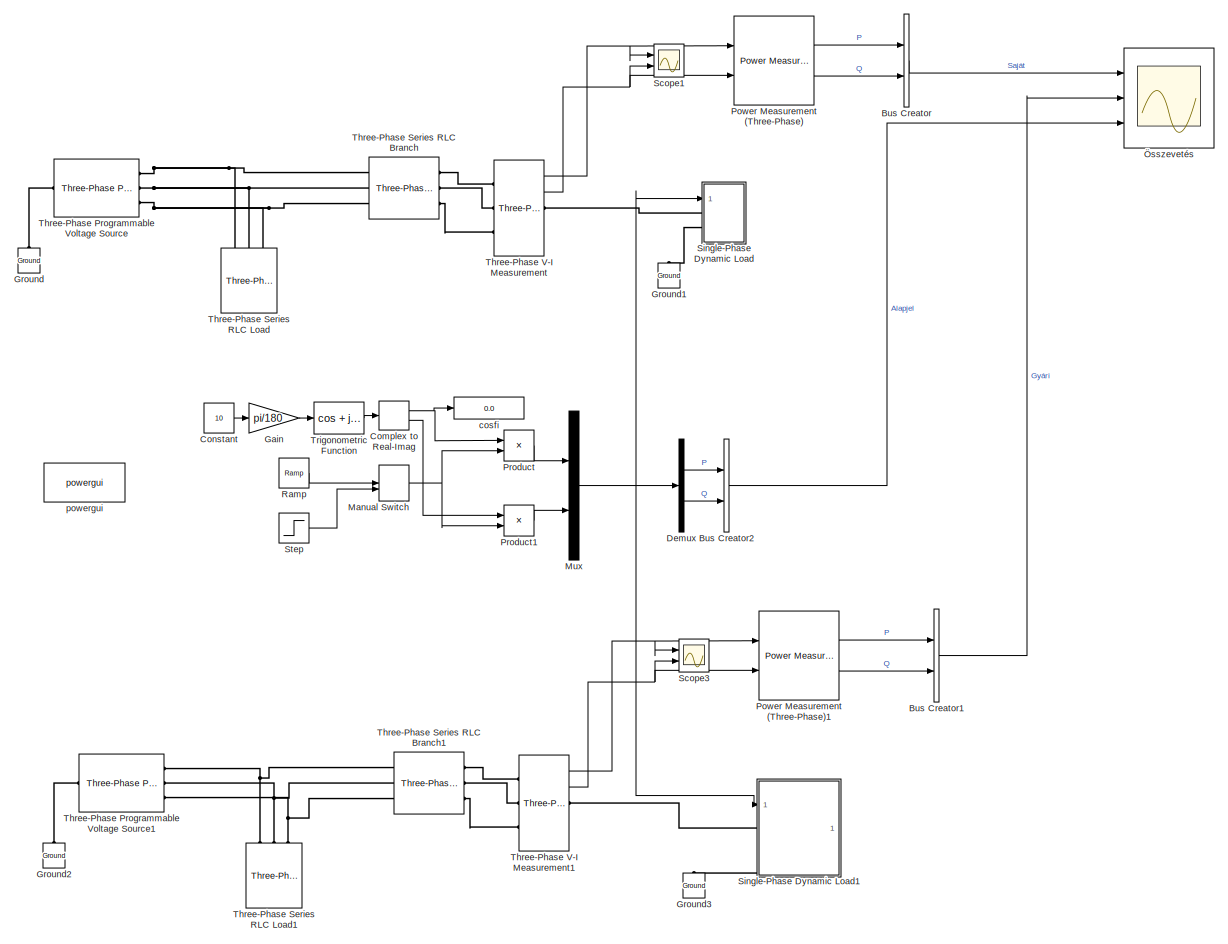
[diagram: root canvas - part 1/1, most of the canvas]
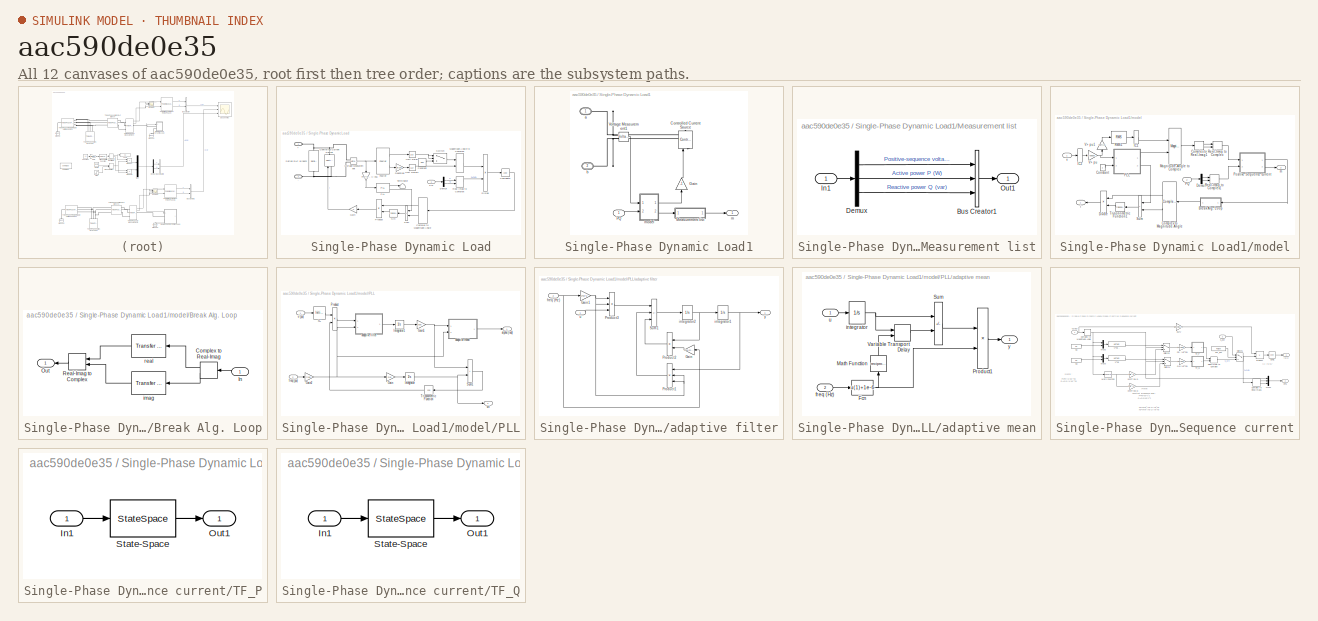
[diagram: thumbnail index - all 12 canvases of the model, root first then tree order]
MODEL slx_aac590de0e35
KIND model
CONFIG AbsTol = auto
CONFIG EnableMultiTasking = off
CONFIG FixedStep = 1e-4
CONFIG MaxStep = auto
CONFIG MinStep = auto
CONFIG RelTol = 1e-3
CONFIG SampleTimeConstraint = Unconstrained
CONFIG SolverName = ode1be
CONFIG StartTime = 0.0
CONFIG StopTime = 1.1
BLOCK [BusCreator] Bus Creator
  DisplayOption = bar
  InheritFromInputs = on
  Inputs = 2
  Ports = [2, 1]
BLOCK [BusCreator] Bus Creator1
  DisplayOption = bar
  InheritFromInputs = on
  Inputs = 2
  Ports = [2, 1]
BLOCK [BusCreator] Bus Creator2
  DisplayOption = bar
  InheritFromInputs = on
  Inputs = 2
  Ports = [2, 1]
BLOCK [ComplexToRealImag] Complex to Real-Imag
  Ports = [1, 2]
BLOCK [Constant] Constant
  Value = 10
BLOCK [Demux] Demux
  Outputs = 2
  Ports = [1, 2]
BLOCK [Gain] Gain
  Gain = pi/180
BLOCK [Reference] Ground  REF=spsGroundLib/Ground
  NameLocation = right
  Ports = [0, 0, 0, 0, 0, 1]
  SourceBlock = spsGroundLib/Ground
  SourceProductBaseCode = PS
  SourceType = Ground
BLOCK [Reference] Ground1  REF=spsGroundLib/Ground
  NameLocation = right
  Ports = [0, 0, 0, 0, 0, 1]
  SourceBlock = spsGroundLib/Ground
  SourceProductBaseCode = PS
  SourceType = Ground
BLOCK [Reference] Ground2  REF=spsGroundLib/Ground
  NameLocation = right
  Ports = [0, 0, 0, 0, 0, 1]
  SourceBlock = spsGroundLib/Ground
  SourceProductBaseCode = PS
  SourceType = Ground
BLOCK [Reference] Ground3  REF=spsGroundLib/Ground
  NameLocation = right
  Ports = [0, 0, 0, 0, 0, 1]
  SourceBlock = spsGroundLib/Ground
  SourceProductBaseCode = PS
  SourceType = Ground
BLOCK [ManualSwitch] Manual Switch
  CurrentSetting = 0
BLOCK [Mux] Mux
  DisplayOption = bar
  Inputs = 2
  Ports = [2, 1]
BLOCK [Reference] Power Measurement (Three-Phase)  REF=eePowerMeasurement/Power Measurement
(Three-Phase)
  Ports = [2, 2]
  SourceBlock = eePowerMeasurement/Power Measurement\n(Three-Phase)
  SourceProductBaseCode = PS
  SourceType = Power Measurement (Three-Phase)
BLOCK [Reference] Power Measurement (Three-Phase)1  REF=eePowerMeasurement/Power Measurement
(Three-Phase)
  Ports = [2, 2]
  SourceBlock = eePowerMeasurement/Power Measurement\n(Three-Phase)
  SourceProductBaseCode = PS
  SourceType = Power Measurement (Three-Phase)
BLOCK [Product] Product
  Ports = [2, 1]
BLOCK [Product] Product1
  Ports = [2, 1]
BLOCK [Reference] Ramp  REF=simulink/Sources/Ramp
  Ports = [0, 1]
  SourceBlock = simulink/Sources/Ramp
  SourceProductBaseCode = SL
  SourceType = Ramp
BLOCK [Scope] Scope1
  Floating = off
  NumInputPorts = 2
  Ports = [2]
  ScopeSpecificationString = Simulink.scopes.TimeScopeBlockCfg('CurrentConfiguration', extmgr.ConfigurationSet(extmgr.Configuration('Core','General UI',true),extmgr.Configuration('Core','Source UI',true),extmgr.Configuration('Sources','WiredSimulink',true,'DataLoggingVariableName','ScopeData1'),extmgr.Configuration('Visuals','Time Domain',true,'SerializedDisplays',{struct('MinYLimReal','-436.57964','MaxYLimReal','476.35522','...<+2317ch>
BLOCK [Scope] Scope3
  Floating = off
  NumInputPorts = 2
  Ports = [2]
  ScopeSpecificationString = Simulink.scopes.TimeScopeBlockCfg('CurrentConfiguration', extmgr.ConfigurationSet(extmgr.Configuration('Core','General UI',true),extmgr.Configuration('Core','Source UI',true),extmgr.Configuration('Sources','WiredSimulink',true,'DataLoggingVariableName','ScopeData3'),extmgr.Configuration('Visuals','Time Domain',true,'SerializedDisplays',{struct('MinYLimReal','-436.57964','MaxYLimReal','476.35522','...<+2323ch>
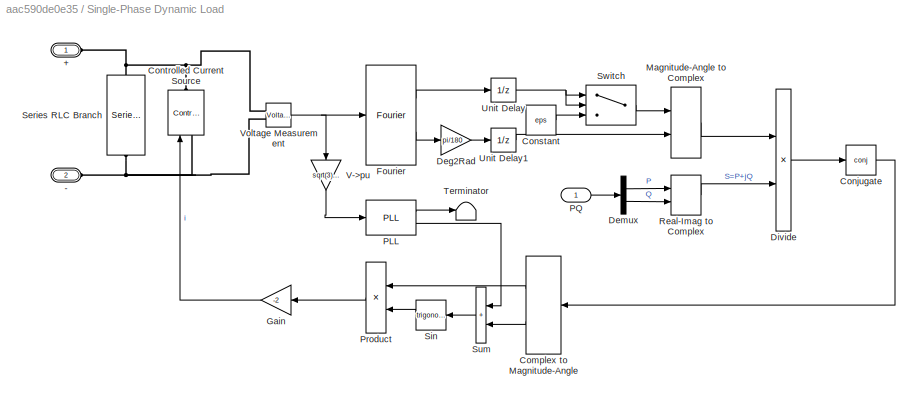
BLOCK [SubSystem] Single-Phase Dynamic Load
  AncestorBlock = kif/Single-Phase\nDynamic Load
  Ports = [1, 0, 0, 0, 0, 2]
  RequestExecContextInheritance = off
BLOCK [PMIOPort] Single-Phase Dynamic Load/+
  Side = Left
BLOCK [PMIOPort] Single-Phase Dynamic Load/-
  Port = 2
  Side = Left
BLOCK [ComplexToMagnitudeAngle] Single-Phase Dynamic Load/Complex to Magnitude-Angle
  Ports = [1, 2]
BLOCK [Math] Single-Phase Dynamic Load/Conjugate
  Operator = conj
  Ports = [1, 1]
  RndMeth = Zero
  SignedPower = on
BLOCK [Constant] Single-Phase Dynamic Load/Constant
  Value = eps
BLOCK [Reference] Single-Phase Dynamic Load/Controlled Current Source  REF=spsControlledCurrentSourceLib/Controlled Current Source
  Ports = [1, 0, 0, 0, 0, 1, 1]
  SourceBlock = spsControlledCurrentSourceLib/Controlled Current Source
  SourceProductBaseCode = PS
  SourceType = Controlled Current Source
BLOCK [Gain] Single-Phase Dynamic Load/Deg2Rad
  Gain = pi/180
BLOCK [Demux] Single-Phase Dynamic Load/Demux
  Outputs = 2
  Ports = [1, 2]
BLOCK [Product] Single-Phase Dynamic Load/Divide
  Inputs = /*
  Ports = [2, 1]
BLOCK [Reference] Single-Phase Dynamic Load/Fourier  REF=spsFourierLib/Fourier
  Ports = [1, 2]
  SourceBlock = spsFourierLib/Fourier
  SourceProductBaseCode = PS
  SourceType = Fourier
BLOCK [Gain] Single-Phase Dynamic Load/Gain
  Gain = -2
BLOCK [MagnitudeAngleToComplex] Single-Phase Dynamic Load/Magnitude-Angle to Complex
  Ports = [2, 1]
BLOCK [Reference] Single-Phase Dynamic Load/PLL  REF=spsPLLLib/PLL
  Ports = [1, 2]
  SourceBlock = spsPLLLib/PLL
  SourceProductBaseCode = PS
  SourceType = PLL
BLOCK [Inport] Single-Phase Dynamic Load/PQ
BLOCK [Product] Single-Phase Dynamic Load/Product
  Ports = [2, 1]
BLOCK [RealImagToComplex] Single-Phase Dynamic Load/Real-Imag to Complex
  Ports = [2, 1]
BLOCK [Reference] Single-Phase Dynamic Load/Series RLC Branch  REF=spsSeriesRLCBranchLib/Series RLC Branch
  NameLocation = left
  Ports = [0, 0, 0, 0, 0, 1, 1]
  SourceBlock = spsSeriesRLCBranchLib/Series RLC Branch
  SourceProductBaseCode = PS
  SourceType = Series RLC Branch
BLOCK [Trigonometry] Single-Phase Dynamic Load/Sin
  Ports = [1, 1]
BLOCK [Sum] Single-Phase Dynamic Load/Sum
  IconShape = rectangular
  Ports = [2, 1]
BLOCK [Switch] Single-Phase Dynamic Load/Switch
  Criteria = u2 ~= 0
  InputSameDT = off
  SaturateOnIntegerOverflow = off
BLOCK [Terminator] Single-Phase Dynamic Load/Terminator
BLOCK [UnitDelay] Single-Phase Dynamic Load/Unit Delay
  HasFrameUpgradeWarning = on
  SampleTime = -1
BLOCK [UnitDelay] Single-Phase Dynamic Load/Unit Delay1
  HasFrameUpgradeWarning = on
  SampleTime = -1
BLOCK [Gain] Single-Phase Dynamic Load/V->pu
  Gain = sqrt(3)/400
  NameLocation = left
BLOCK [Reference] Single-Phase Dynamic Load/Voltage Measurement  REF=spsVoltageMeasurementLib/Voltage Measurement
  Ports = [0, 1, 0, 0, 0, 2]
  SourceBlock = spsVoltageMeasurementLib/Voltage Measurement
  SourceProductBaseCode = PS
  SourceType = Voltage Measurement
  UserDataPersistent = on
BLOCK [SubSystem] Single-Phase Dynamic Load1
  DialogController = POWERSYS.PowerSysDialog
  Ports = [1, 1, 0, 0, 0, 2]
  RequestExecContextInheritance = off
BLOCK [Reference] Single-Phase Dynamic Load1/Controlled Current Source  REF=spsControlledCurrentSourceLib/Controlled Current Source
  NameLocation = right
  Ports = [1, 0, 0, 0, 0, 1, 1]
  SourceBlock = spsControlledCurrentSourceLib/Controlled Current Source
  SourceProductBaseCode = PS
  SourceType = Controlled Current Source
BLOCK [Gain] Single-Phase Dynamic Load1/Gain
  Gain = -1
  NameLocation = right
BLOCK [SubSystem] Single-Phase Dynamic Load1/Measurement list
  Ports = [1, 1]
  RequestExecContextInheritance = off
BLOCK [BusCreator] Single-Phase Dynamic Load1/Measurement list/Bus Creator1
  DisplayOption = bar
  InheritFromInputs = on
  Inputs = 3
  Ports = [3, 1]
BLOCK [Demux] Single-Phase Dynamic Load1/Measurement list/Demux
  Outputs = [1,1,1]
  Ports = [1, 3]
BLOCK [Inport] Single-Phase Dynamic Load1/Measurement list/In1
BLOCK [Outport] Single-Phase Dynamic Load1/Measurement list/Out1
  VectorParamsAs1DForOutWhenUnconnected = off
BLOCK [Inport] Single-Phase Dynamic Load1/PQ
BLOCK [Reference] Single-Phase Dynamic Load1/Voltage Measurement1  REF=spsVoltageMeasurementLib/Voltage Measurement
  Ports = [0, 1, 0, 0, 0, 2]
  SourceBlock = spsVoltageMeasurementLib/Voltage Measurement
  SourceProductBaseCode = PS
  SourceType = Voltage Measurement
BLOCK [PMIOPort] Single-Phase Dynamic Load1/a
  Side = Left
  Tag = PMCPort
BLOCK [PMIOPort] Single-Phase Dynamic Load1/b
  Port = 2
  Side = Left
  Tag = PMCPort
BLOCK [Outport] Single-Phase Dynamic Load1/m
  InitialOutput = [0,0,0]
  VectorParamsAs1DForOutWhenUnconnected = off
BLOCK [SubSystem] Single-Phase Dynamic Load1/model
  Ports = [2, 2]
  RequestExecContextInheritance = off
BLOCK [SubSystem] Single-Phase Dynamic Load1/model/Break Alg. Loop
  Ports = [1, 1]
  RequestExecContextInheritance = off
BLOCK [ComplexToRealImag] Single-Phase Dynamic Load1/model/Break Alg. Loop/Complex to Real-Imag
  Ports = [1, 2]
BLOCK [Inport] Single-Phase Dynamic Load1/model/Break Alg. Loop/In
BLOCK [Outport] Single-Phase Dynamic Load1/model/Break Alg. Loop/Out
  VectorParamsAs1DForOutWhenUnconnected = off
BLOCK [RealImagToComplex] Single-Phase Dynamic Load1/model/Break Alg. Loop/Real-Imag to Complex
  Ports = [2, 1]
BLOCK [Reference] Single-Phase Dynamic Load1/model/Break Alg. Loop/imag  REF=simulink_extras/Additional
Linear/Transfer Fcn
(with initial outputs)
  Ports = [1, 1]
  SourceBlock = simulink_extras/Additional\nLinear/Transfer Fcn\n(with initial outputs)
  SourceProductBaseCode = SL
  SourceType = Transfer Function with Initial Outputs
BLOCK [Reference] Single-Phase Dynamic Load1/model/Break Alg. Loop/real  REF=simulink_extras/Additional
Linear/Transfer Fcn
(with initial outputs)
  Ports = [1, 1]
  SourceBlock = simulink_extras/Additional\nLinear/Transfer Fcn\n(with initial outputs)
  SourceProductBaseCode = SL
  SourceType = Transfer Function with Initial Outputs
BLOCK [ComplexToMagnitudeAngle] Single-Phase Dynamic Load1/model/Complex to Magnitude-Angle
  NameLocation = top
  Ports = [1, 2]
BLOCK [ComplexToRealImag] Single-Phase Dynamic Load1/model/Complex to Real-Imag1
  Ports = [1, 2]
BLOCK [Constant] Single-Phase Dynamic Load1/model/Constant
BLOCK [Demux] Single-Phase Dynamic Load1/model/Demux
  DisplayOption = none
  Outputs = 2
  Ports = [1, 2]
BLOCK [Product] Single-Phase Dynamic Load1/model/Divide
  Inputs = **
  NameLocation = top
  Ports = [2, 1]
BLOCK [InitialCondition] Single-Phase Dynamic Load1/model/IC1
BLOCK [InitialCondition] Single-Phase Dynamic Load1/model/IC2
BLOCK [MagnitudeAngleToComplex] Single-Phase Dynamic Load1/model/Magnitude-Angle to Complex
  Ports = [2, 1]
BLOCK [SubSystem] Single-Phase Dynamic Load1/model/PLL
  Ports = [2, 2]
  RequestExecContextInheritance = off
BLOCK [Gain] Single-Phase Dynamic Load1/model/PLL/Gain
  Gain = 2*pi
  NameLocation = top
BLOCK [Gain] Single-Phase Dynamic Load1/model/PLL/Gain1
  Gain = 500
  NameLocation = top
BLOCK [Gain] Single-Phase Dynamic Load1/model/PLL/Gain2
  Gain = freq
  NameLocation = top
BLOCK [InitialCondition] Single-Phase Dynamic Load1/model/PLL/IC
BLOCK [Integrator] Single-Phase Dynamic Load1/model/PLL/Integrator
  Ports = [1, 1]
BLOCK [Integrator] Single-Phase Dynamic Load1/model/PLL/Integrator1
  Ports = [1, 1]
BLOCK [Product] Single-Phase Dynamic Load1/model/PLL/Product
  Inputs = **
  Ports = [2, 1]
  RndMeth = Zero
BLOCK [Sum] Single-Phase Dynamic Load1/model/PLL/Sum1
  IconShape = rectangular
  InputSameDT = on
  OutDataTypeStr = Inherit: Same as first input
  Ports = [2, 1]
  SaturateOnIntegerOverflow = on
BLOCK [Trigonometry] Single-Phase Dynamic Load1/model/PLL/Trigonometric Function
  Operator = cos
  Ports = [1, 1]
BLOCK [SubSystem] Single-Phase Dynamic Load1/model/PLL/adaptive filter
  Ports = [2, 1]
  RequestExecContextInheritance = off
BLOCK [Gain] Single-Phase Dynamic Load1/model/PLL/adaptive filter/Gain
  Gain = 2*pi*2*0.707*2
  NameLocation = top
BLOCK [Gain] Single-Phase Dynamic Load1/model/PLL/adaptive filter/Gain1
  Gain = 2*pi*2
BLOCK [Product] Single-Phase Dynamic Load1/model/PLL/adaptive filter/Product1
  Inputs = ***
  NameLocation = top
  Ports = [3, 1]
  RndMeth = Zero
BLOCK [Product] Single-Phase Dynamic Load1/model/PLL/adaptive filter/Product2
  Inputs = **
  NameLocation = top
  Ports = [2, 1]
  RndMeth = Zero
BLOCK [Product] Single-Phase Dynamic Load1/model/PLL/adaptive filter/Product3
  Inputs = ***
  Ports = [3, 1]
  RndMeth = Zero
BLOCK [Sum] Single-Phase Dynamic Load1/model/PLL/adaptive filter/Sum1
  IconShape = rectangular
  InputSameDT = on
  Inputs = +--
  OutDataTypeStr = Inherit: Same as first input
  Ports = [3, 1]
  SaturateOnIntegerOverflow = on
BLOCK [Inport] Single-Phase Dynamic Load1/model/PLL/adaptive filter/freq (Hz)
  Port = 2
BLOCK [Integrator] Single-Phase Dynamic Load1/model/PLL/adaptive filter/integrator1
  Ports = [1, 1]
BLOCK [Integrator] Single-Phase Dynamic Load1/model/PLL/adaptive filter/integrator2
  Ports = [1, 1]
BLOCK [Inport] Single-Phase Dynamic Load1/model/PLL/adaptive filter/u
BLOCK [Outport] Single-Phase Dynamic Load1/model/PLL/adaptive filter/y
  VectorParamsAs1DForOutWhenUnconnected = off
BLOCK [SubSystem] Single-Phase Dynamic Load1/model/PLL/adaptive mean
  Ports = [2, 1]
  RequestExecContextInheritance = off
BLOCK [Fcn] Single-Phase Dynamic Load1/model/PLL/adaptive mean/Fcn
  Expr = u(1)+1e-6
BLOCK [Math] Single-Phase Dynamic Load1/model/PLL/adaptive mean/Math Function
  NameLocation = right
  Operator = reciprocal
  Ports = [1, 1]
  SignedPower = on
BLOCK [Product] Single-Phase Dynamic Load1/model/PLL/adaptive mean/Product1
  Inputs = **
  Ports = [2, 1]
  RndMeth = Zero
BLOCK [Sum] Single-Phase Dynamic Load1/model/PLL/adaptive mean/Sum
  IconShape = rectangular
  InputSameDT = on
  Inputs = +-
  OutDataTypeStr = Inherit: Same as first input
  Ports = [2, 1]
  SaturateOnIntegerOverflow = on
BLOCK [VariableTransportDelay] Single-Phase Dynamic Load1/model/PLL/adaptive mean/Variable Transport Delay
  MaximumDelay = 1/40
  MaximumPoints = 4096
  Ports = [2, 1]
BLOCK [Inport] Single-Phase Dynamic Load1/model/PLL/adaptive mean/freq (Hz)
  Port = 2
BLOCK [Integrator] Single-Phase Dynamic Load1/model/PLL/adaptive mean/integrator
  Ports = [1, 1]
BLOCK [Inport] Single-Phase Dynamic Load1/model/PLL/adaptive mean/u
BLOCK [Outport] Single-Phase Dynamic Load1/model/PLL/adaptive mean/y
  VectorParamsAs1DForOutWhenUnconnected = off
BLOCK [Outport] Single-Phase Dynamic Load1/model/PLL/alpha (rad)
  VectorParamsAs1DForOutWhenUnconnected = off
BLOCK [Inport] Single-Phase Dynamic Load1/model/PLL/freq (pu)
  Port = 2
BLOCK [Inport] Single-Phase Dynamic Load1/model/PLL/v (pu)
BLOCK [Outport] Single-Phase Dynamic Load1/model/PLL/wt
  Port = 2
  VectorParamsAs1DForOutWhenUnconnected = off
BLOCK [Inport] Single-Phase Dynamic Load1/model/PQ
  Port = 2
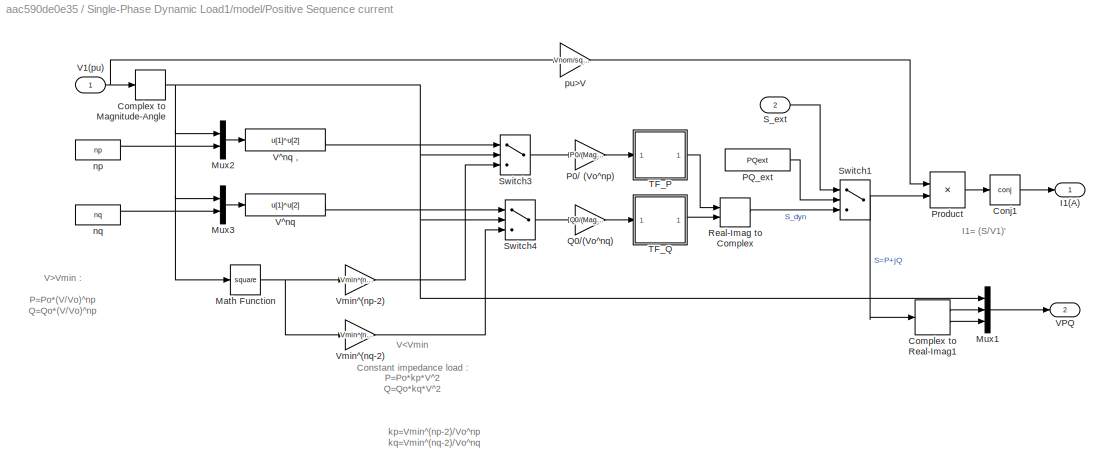
BLOCK [SubSystem] Single-Phase Dynamic Load1/model/Positive Sequence current
  Ports = [2, 2]
  RequestExecContextInheritance = off
BLOCK [ComplexToMagnitudeAngle] Single-Phase Dynamic Load1/model/Positive Sequence current/Complex to Magnitude-Angle
  Output = Magnitude
  Ports = [1, 1]
BLOCK [ComplexToRealImag] Single-Phase Dynamic Load1/model/Positive Sequence current/Complex to Real-Imag1
  Ports = [1, 2]
BLOCK [Math] Single-Phase Dynamic Load1/model/Positive Sequence current/Conj1
  Operator = conj
  Ports = [1, 1]
  SignedPower = on
BLOCK [Outport] Single-Phase Dynamic Load1/model/Positive Sequence current/I1(A)
  VectorParamsAs1DForOutWhenUnconnected = off
BLOCK [Math] Single-Phase Dynamic Load1/model/Positive Sequence current/Math Function
  Operator = square
  Ports = [1, 1]
  SignedPower = on
BLOCK [Mux] Single-Phase Dynamic Load1/model/Positive Sequence current/Mux1
  DisplayOption = bar
  Inputs = 3
  Ports = [3, 1]
BLOCK [Mux] Single-Phase Dynamic Load1/model/Positive Sequence current/Mux2
  DisplayOption = bar
  Inputs = 2
  Ports = [2, 1]
BLOCK [Mux] Single-Phase Dynamic Load1/model/Positive Sequence current/Mux3
  DisplayOption = bar
  Inputs = 2
  Ports = [2, 1]
BLOCK [Gain] Single-Phase Dynamic Load1/model/Positive Sequence current/P0// (Vo^np)
  Gain = P0/(Mag_V0^np)
  OutDataTypeStr = Inherit: Same as input
  ParamDataTypeStr = Inherit: Same as input
  SaturateOnIntegerOverflow = on
BLOCK [Constant] Single-Phase Dynamic Load1/model/Positive Sequence current/PQ_ext
  Value = PQext
BLOCK [Product] Single-Phase Dynamic Load1/model/Positive Sequence current/Product
  InputSameDT = on
  Inputs = /*
  OutDataTypeStr = Inherit: Same as first input
  Ports = [2, 1]
  SaturateOnIntegerOverflow = on
BLOCK [Gain] Single-Phase Dynamic Load1/model/Positive Sequence current/Q0//(Vo^nq)
  Gain = Q0/(Mag_V0^nq)
  OutDataTypeStr = Inherit: Same as input
  ParamDataTypeStr = Inherit: Same as input
  SaturateOnIntegerOverflow = on
BLOCK [RealImagToComplex] Single-Phase Dynamic Load1/model/Positive Sequence current/Real-Imag to Complex
  Ports = [2, 1]
BLOCK [Inport] Single-Phase Dynamic Load1/model/Positive Sequence current/S_ext
  Port = 2
BLOCK [Switch] Single-Phase Dynamic Load1/model/Positive Sequence current/Switch1
  SaturateOnIntegerOverflow = off
  Threshold = 0.5
BLOCK [Switch] Single-Phase Dynamic Load1/model/Positive Sequence current/Switch3
  SaturateOnIntegerOverflow = off
  Threshold = Vmin
BLOCK [Switch] Single-Phase Dynamic Load1/model/Positive Sequence current/Switch4
  SaturateOnIntegerOverflow = off
  Threshold = Vmin
BLOCK [SubSystem] Single-Phase Dynamic Load1/model/Positive Sequence current/TF_P
  Ports = [1, 1]
  RequestExecContextInheritance = off
BLOCK [Inport] Single-Phase Dynamic Load1/model/Positive Sequence current/TF_P/In1
BLOCK [Outport] Single-Phase Dynamic Load1/model/Positive Sequence current/TF_P/Out1
  VectorParamsAs1DForOutWhenUnconnected = off
BLOCK [StateSpace] Single-Phase Dynamic Load1/model/Positive Sequence current/TF_P/State-Space
  A = Ac
  B = Bc
  C = Cc
  D = Dc
  InitialCondition = x0c
  Ports = [1, 1]
BLOCK [SubSystem] Single-Phase Dynamic Load1/model/Positive Sequence current/TF_Q
  Ports = [1, 1]
  RequestExecContextInheritance = off
BLOCK [Inport] Single-Phase Dynamic Load1/model/Positive Sequence current/TF_Q/In1
BLOCK [Outport] Single-Phase Dynamic Load1/model/Positive Sequence current/TF_Q/Out1
  VectorParamsAs1DForOutWhenUnconnected = off
BLOCK [StateSpace] Single-Phase Dynamic Load1/model/Positive Sequence current/TF_Q/State-Space
  A = Ac
  B = Bc
  C = Cc
  D = Dc
  InitialCondition = x0c
  Ports = [1, 1]
BLOCK [Inport] Single-Phase Dynamic Load1/model/Positive Sequence current/V1(pu)
BLOCK [Outport] Single-Phase Dynamic Load1/model/Positive Sequence current/VPQ
  Port = 2
  VectorParamsAs1DForOutWhenUnconnected = off
BLOCK [Fcn] Single-Phase Dynamic Load1/model/Positive Sequence current/V^nq
  Expr = u[1]^u[2]
BLOCK [Fcn] Single-Phase Dynamic Load1/model/Positive Sequence current/V^nq ,
  Expr = u[1]^u[2]
BLOCK [Gain] Single-Phase Dynamic Load1/model/Positive Sequence current/Vmin^(np-2)
  Gain = Vmin^(np-2)
  OutDataTypeStr = Inherit: Same as input
  ParamDataTypeStr = Inherit: Same as input
  SaturateOnIntegerOverflow = on
BLOCK [Gain] Single-Phase Dynamic Load1/model/Positive Sequence current/Vmin^(nq-2)
  Gain = Vmin^(nq-2)
  OutDataTypeStr = Inherit: Same as input
  ParamDataTypeStr = Inherit: Same as input
  SaturateOnIntegerOverflow = on
BLOCK [Constant] Single-Phase Dynamic Load1/model/Positive Sequence current/np
  Value = np
BLOCK [Constant] Single-Phase Dynamic Load1/model/Positive Sequence current/nq
  Value = nq
BLOCK [Gain] Single-Phase Dynamic Load1/model/Positive Sequence current/pu>V
  Gain = Vnom/sqrt(2)
  OutDataTypeStr = Inherit: Same as input
  ParamDataTypeStr = Inherit: Same as input
  SaturateOnIntegerOverflow = on
BLOCK [Reference] Single-Phase Dynamic Load1/model/RMS1  REF=spsRMSLib/RMS
  Ports = [1, 1]
  SourceBlock = spsRMSLib/RMS
  SourceProductBaseCode = PS
  SourceType = RMS
BLOCK [RealImagToComplex] Single-Phase Dynamic Load1/model/Real-Imag to Complex
  Ports = [2, 1]
BLOCK [RealImagToComplex] Single-Phase Dynamic Load1/model/Real-Imag to Complex1
  Ports = [2, 1]
BLOCK [Sum] Single-Phase Dynamic Load1/model/Sum
  IconShape = rectangular
  NameLocation = top
  Ports = [2, 1]
BLOCK [Trigonometry] Single-Phase Dynamic Load1/model/Trigonometric Function1
  Ports = [1, 1]
BLOCK [Gain] Single-Phase Dynamic Load1/model/V> pu
  Gain = 1/Vbase/sqrt(3)
  OutDataTypeStr = Inherit: Same as input
  ParamDataTypeStr = Inherit: Same as input
  SaturateOnIntegerOverflow = on
BLOCK [Gain] Single-Phase Dynamic Load1/model/V> pu1
  Gain = sqrt(2)
  NameLocation = right
  OutDataTypeStr = Inherit: Same as input
  ParamDataTypeStr = Inherit: Same as input
  SaturateOnIntegerOverflow = on
BLOCK [Outport] Single-Phase Dynamic Load1/model/i
  VectorParamsAs1DForOutWhenUnconnected = off
BLOCK [Outport] Single-Phase Dynamic Load1/model/m
  Port = 2
  VectorParamsAs1DForOutWhenUnconnected = off
BLOCK [Inport] Single-Phase Dynamic Load1/model/v
BLOCK [Step] Step
  After = 1000
  SampleTime = 0
  Time = 0.1
BLOCK [Reference] Three-Phase Programmable Voltage Source  REF=spsThreePhaseProgrammableVoltageSourceLib/Three-Phase
Programmable
Voltage Source
  Ports = [0, 0, 0, 0, 0, 1, 3]
  SourceBlock = spsThreePhaseProgrammableVoltageSourceLib/Three-Phase\nProgrammable\nVoltage Source
  SourceProductBaseCode = PS
  SourceType = Three-Phase Programmable Voltage Source
BLOCK [Reference] Three-Phase Programmable Voltage Source1  REF=spsThreePhaseProgrammableVoltageSourceLib/Three-Phase
Programmable
Voltage Source
  Ports = [0, 0, 0, 0, 0, 1, 3]
  SourceBlock = spsThreePhaseProgrammableVoltageSourceLib/Three-Phase\nProgrammable\nVoltage Source
  SourceProductBaseCode = PS
  SourceType = Three-Phase Programmable Voltage Source
BLOCK [Reference] Three-Phase Series RLC Branch  REF=spsThreePhaseSeriesRLCBranchLib/Three-Phase
Series RLC Branch
  AttributesFormatString = \n
  Ports = [0, 0, 0, 0, 0, 3, 3]
  SourceBlock = spsThreePhaseSeriesRLCBranchLib/Three-Phase\nSeries RLC Branch
  SourceProductBaseCode = PS
  SourceType = Three-Phase Series RLC Branch
BLOCK [Reference] Three-Phase Series RLC Branch1  REF=spsThreePhaseSeriesRLCBranchLib/Three-Phase
Series RLC Branch
  AttributesFormatString = \n
  Ports = [0, 0, 0, 0, 0, 3, 3]
  SourceBlock = spsThreePhaseSeriesRLCBranchLib/Three-Phase\nSeries RLC Branch
  SourceProductBaseCode = PS
  SourceType = Three-Phase Series RLC Branch
BLOCK [Reference] Three-Phase Series RLC Load  REF=spsThreePhaseSeriesRLCLoadLib/Three-Phase
Series RLC Load
  AttributesFormatString = \n
  Ports = [0, 0, 0, 0, 0, 3]
  SourceBlock = spsThreePhaseSeriesRLCLoadLib/Three-Phase\nSeries RLC Load
  SourceProductBaseCode = PS
  SourceType = Three-Phase Series RLC Load
BLOCK [Reference] Three-Phase Series RLC Load1  REF=spsThreePhaseSeriesRLCLoadLib/Three-Phase
Series RLC Load
  AttributesFormatString = \n
  Ports = [0, 0, 0, 0, 0, 3]
  SourceBlock = spsThreePhaseSeriesRLCLoadLib/Three-Phase\nSeries RLC Load
  SourceProductBaseCode = PS
  SourceType = Three-Phase Series RLC Load
BLOCK [Reference] Three-Phase V-I Measurement  REF=spsThreePhaseVIMeasurementLib/Three-Phase
V-I Measurement
  Ports = [0, 2, 0, 0, 0, 3, 3]
  SourceBlock = spsThreePhaseVIMeasurementLib/Three-Phase\nV-I Measurement
  SourceProductBaseCode = PS
  SourceType = Three-Phase VI Measurement
BLOCK [Reference] Three-Phase V-I Measurement1  REF=spsThreePhaseVIMeasurementLib/Three-Phase
V-I Measurement
  Ports = [0, 2, 0, 0, 0, 3, 3]
  SourceBlock = spsThreePhaseVIMeasurementLib/Three-Phase\nV-I Measurement
  SourceProductBaseCode = PS
  SourceType = Three-Phase VI Measurement
BLOCK [Trigonometry] Trigonometric Function
  Operator = cos + jsin
  OutputSignalType = real
  Ports = [1, 1]
BLOCK [Display] cosfi
  Decimation = 1
  Ports = [1]
BLOCK [Reference] powergui  REF=spspowerguiLib/powergui
  Ports = []
  Priority = 1
  SourceBlock = spspowerguiLib/powergui
  SourceProductBaseCode = PS
  SourceType = PSB option menu block
BLOCK [Scope] Összevetés
  Floating = off
  NumInputPorts = 3
  Ports = [3]
  ScopeSpecificationString = Simulink.scopes.TimeScopeBlockCfg('CurrentConfiguration', extmgr.ConfigurationSet(extmgr.Configuration('Core','General UI',true),extmgr.Configuration('Core','Source UI',true),extmgr.Configuration('Sources','WiredSimulink',true),extmgr.Configuration('Visuals','Time Domain',true,'SerializedDisplays',{struct('MinYLimReal','-1100','MaxYLimReal','1100','YLabelReal','','MinYLimMag',' 0.00000','MaxYLimMa...<+1633ch>
ANNOTATION Single-Phase Dynamic Load1/model/Positive Sequence current: I1= (S/V1)'
ANNOTATION Single-Phase Dynamic Load1/model/Positive Sequence current: V<Vmin Constant impedance load : P=Po*kp*V^2 Q=Qo*kq*V^2
ANNOTATION Single-Phase Dynamic Load1/model/Positive Sequence current: V>Vmin : P=Po*(V/Vo)^np Q=Qo*(V/Vo)^np
ANNOTATION Single-Phase Dynamic Load1/model/Positive Sequence current: kp=Vmin^(np-2)/Vo^np kq=Vmin^(nq-2)/Vo^nq
LINE Bus Creator1:1 -> Összevetés:2
LINE Bus Creator2:1 -> Összevetés:3
LINE Bus Creator:1 -> Összevetés:1
NET Complex to Real-Imag:1 -> Product:1, cosfi:1
LINE Complex to Real-Imag:2 -> Product1:1
LINE Constant:1 -> Gain:1
LINE Demux:1 -> Bus Creator2:1
LINE Demux:2 -> Bus Creator2:2
LINE Gain:1 -> Trigonometric Function:1
NET Manual Switch:1 -> Product1:2, Product:2
NET Mux:1 -> Demux:1, Single-Phase Dynamic Load1:1, Single-Phase Dynamic Load:1
LINE Power Measurement (Three-Phase)1:1 -> Bus Creator1:1
LINE Power Measurement (Three-Phase)1:2 -> Bus Creator1:2
LINE Power Measurement (Three-Phase):1 -> Bus Creator:1
LINE Power Measurement (Three-Phase):2 -> Bus Creator:2
LINE Product1:1 -> Mux:2
LINE Product:1 -> Mux:1
LINE Ramp:1 -> Manual Switch:1
LINE Step:1 -> Manual Switch:2
NET Three-Phase V-I Measurement1:1 -> Power Measurement (Three-Phase)1:1, Scope3:1
NET Three-Phase V-I Measurement1:2 -> Power Measurement (Three-Phase)1:2, Scope3:2
NET Three-Phase V-I Measurement:1 -> Power Measurement (Three-Phase):1, Scope1:1
NET Three-Phase V-I Measurement:2 -> Power Measurement (Three-Phase):2, Scope1:2
LINE Trigonometric Function:1 -> Complex to Real-Imag:1
PLINE Ground1:LConn1 -- Single-Phase Dynamic Load:LConn2
PLINE Ground2:LConn1 -- Three-Phase Programmable Voltage Source1:LConn1
PLINE Ground3:LConn1 -- Single-Phase Dynamic Load1:LConn2
PLINE Ground:LConn1 -- Three-Phase Programmable Voltage Source:LConn1
PLINE Single-Phase Dynamic Load1:LConn1 -- Three-Phase V-I Measurement1:RConn1
PLINE Single-Phase Dynamic Load:LConn1 -- Three-Phase V-I Measurement:RConn1
PNET net1: Three-Phase Programmable Voltage Source1:RConn1 -- Three-Phase Series RLC Branch1:LConn1 -- Three-Phase Series RLC Load1:LConn1
PNET net2: Three-Phase Programmable Voltage Source1:RConn2 -- Three-Phase Series RLC Branch1:LConn2 -- Three-Phase Series RLC Load1:LConn2
PNET net3: Three-Phase Programmable Voltage Source1:RConn3 -- Three-Phase Series RLC Branch1:LConn3 -- Three-Phase Series RLC Load1:LConn3
PNET net4: Three-Phase Programmable Voltage Source:RConn1 -- Three-Phase Series RLC Branch:LConn1 -- Three-Phase Series RLC Load:LConn1
PNET net5: Three-Phase Programmable Voltage Source:RConn2 -- Three-Phase Series RLC Branch:LConn2 -- Three-Phase Series RLC Load:LConn2
PNET net6: Three-Phase Programmable Voltage Source:RConn3 -- Three-Phase Series RLC Branch:LConn3 -- Three-Phase Series RLC Load:LConn3
PLINE Three-Phase Series RLC Branch1:RConn1 -- Three-Phase V-I Measurement1:LConn1
PLINE Three-Phase Series RLC Branch1:RConn2 -- Three-Phase V-I Measurement1:LConn2
PLINE Three-Phase Series RLC Branch1:RConn3 -- Three-Phase V-I Measurement1:LConn3
PLINE Three-Phase Series RLC Branch:RConn1 -- Three-Phase V-I Measurement:LConn1
PLINE Three-Phase Series RLC Branch:RConn2 -- Three-Phase V-I Measurement:LConn2
PLINE Three-Phase Series RLC Branch:RConn3 -- Three-Phase V-I Measurement:LConn3
note: NET lines group one-source signal fan-out (src -> all destinations, sorted); 1:1 wires keep LINE; PNET lines group multi-terminal physical nets as a canonical sorted terminal list (undirected conserving connections); 2-terminal nets keep the pairwise PLINE form
